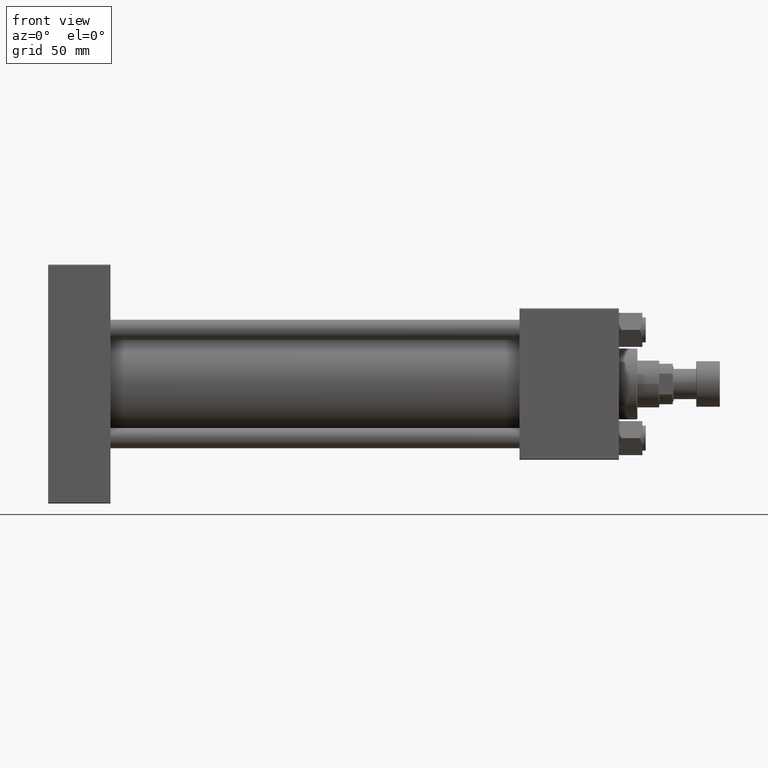
[diagram: clean part render]
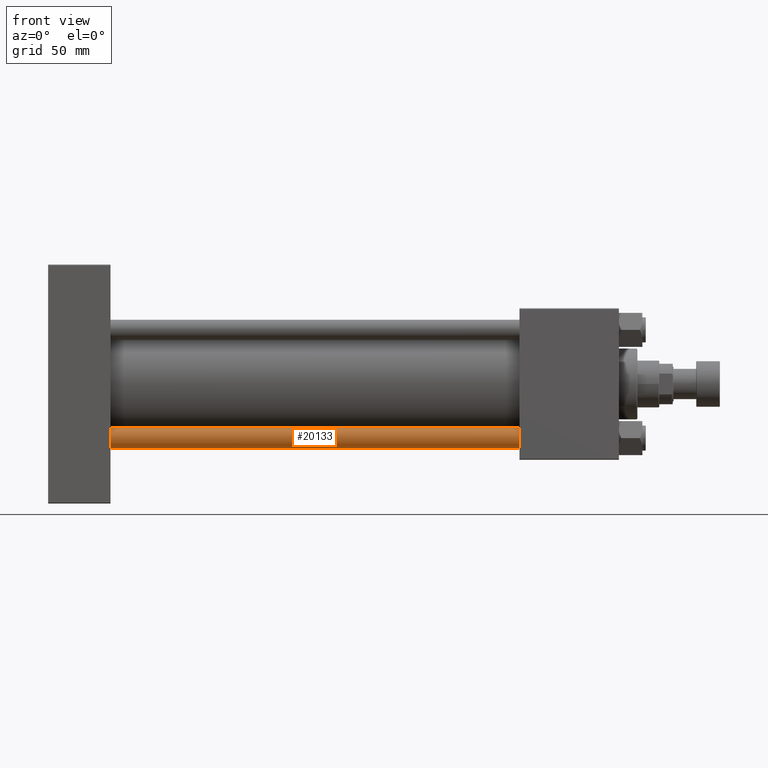
[diagram: same view with one face highlighted and labeled with its STEP entity id]
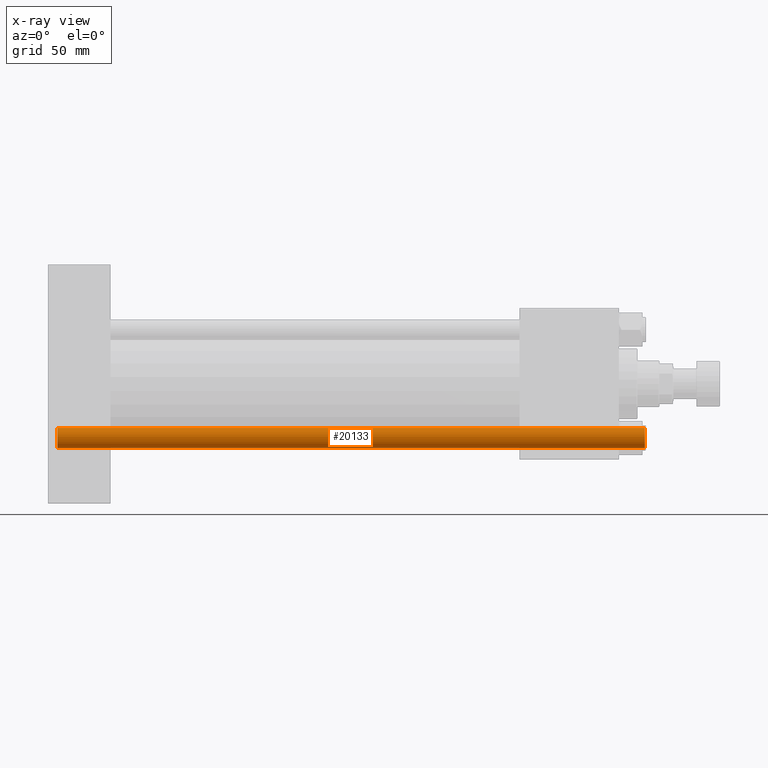
[diagram: x-ray of the same camera — body ghosted, the highlighted face saturated]
A machine part, front view. The second image highlights one B-rep face of the part: STEP entity #20133.
The next image is the same camera in x-ray: the body ghosted, the highlighted face saturated — about 0% of this face is hidden behind the body in this view.
In plain terms, the highlighted cylindrical surface (edge-blend (fillet) strip) has radius 6 mm, axis along (1, -0, -0).
Its self-contained STEP definition (entity closure, byte-faithful):
#735 = LINE ( 'NONE', #40889, #45783 ) ;
#988 = VERTEX_POINT ( 'NONE', #49288 ) ;
#3000 = ORIENTED_EDGE ( 'NONE', *, *, #44713, .T. ) ;
#4490 = VERTEX_POINT ( 'NONE', #44298 ) ;
#5597 = ORIENTED_EDGE ( 'NONE', *, *, #52544, .T. ) ;
#5613 = DIRECTION ( 'NONE',  ( -0.000000000000000000, -0.000000000000000000, -1.000000000000000000 ) ) ;
#6590 = CARTESIAN_POINT ( 'NONE',  ( 6.000000000000000888, 7.347880794884120722E-16, 349.5000000000000568 ) ) ;
#7279 = VECTOR ( 'NONE', #30749, 1000.000000000000000 ) ;
#8762 = ORIENTED_EDGE ( 'NONE', *, *, #23817, .F. ) ;
#11911 = DIRECTION ( 'NONE',  ( -0.000000000000000000, -0.000000000000000000, -1.000000000000000000 ) ) ;
#13798 = DIRECTION ( 'NONE',  ( -0.000000000000000000, -0.000000000000000000, 1.000000000000000000 ) ) ;
#19318 = CARTESIAN_POINT ( 'NONE',  ( 6.000000000000000888, 7.347880794884120722E-16, 350.0000000000000000 ) ) ;
#20133 = ADVANCED_FACE ( 'NONE', ( #38051 ), #21302, .T. ) ;
#20943 = CARTESIAN_POINT ( 'NONE',  ( 0.000000000000000000, 0.000000000000000000, 349.5000000000000568 ) ) ;
#21302 = CYLINDRICAL_SURFACE ( 'NONE', #35192, 6.000000000000000888 ) ;
#21463 = DIRECTION ( 'NONE',  ( 1.000000000000000000, 0.000000000000000000, 0.000000000000000000 ) ) ;
#23330 = CARTESIAN_POINT ( 'NONE',  ( -6.000000000000000888, 0.000000000000000000, 0.4999999999999449329 ) ) ;
#23817 = EDGE_CURVE ( 'NONE', #33579, #988, #43262, .T. ) ;
#25504 = CARTESIAN_POINT ( 'NONE',  ( 0.000000000000000000, 0.000000000000000000, 0.4999999999999449329 ) ) ;
#27031 = AXIS2_PLACEMENT_3D ( 'NONE', #25504, #13798, #41727 ) ;
#29662 = EDGE_CURVE ( 'NONE', #33686, #988, #38057, .T. ) ;
#30156 = EDGE_LOOP ( 'NONE', ( #8762, #3000, #5597, #39017 ) ) ;
#30749 = DIRECTION ( 'NONE',  ( -0.000000000000000000, -0.000000000000000000, -1.000000000000000000 ) ) ;
#33579 = VERTEX_POINT ( 'NONE', #6590 ) ;
#33686 = VERTEX_POINT ( 'NONE', #23330 ) ;
#34320 = DIRECTION ( 'NONE',  ( -1.000000000000000000, 0.000000000000000000, 0.000000000000000000 ) ) ;
#35192 = AXIS2_PLACEMENT_3D ( 'NONE', #37521, #5613, #34320 ) ;
#37521 = CARTESIAN_POINT ( 'NONE',  ( 0.000000000000000000, 0.000000000000000000, 350.0000000000000000 ) ) ;
#38051 = FACE_OUTER_BOUND ( 'NONE', #30156, .T. ) ;
#38057 = CIRCLE ( 'NONE', #27031, 6.000000000000000888 ) ;
#38731 = AXIS2_PLACEMENT_3D ( 'NONE', #20943, #49637, #21463 ) ;
#39017 = ORIENTED_EDGE ( 'NONE', *, *, #29662, .T. ) ;
#40889 = CARTESIAN_POINT ( 'NONE',  ( -6.000000000000000888, 0.000000000000000000, 350.0000000000000000 ) ) ;
#41727 = DIRECTION ( 'NONE',  ( 1.000000000000000000, 0.000000000000000000, 0.000000000000000000 ) ) ;
#43262 = LINE ( 'NONE', #19318, #7279 ) ;
#44298 = CARTESIAN_POINT ( 'NONE',  ( -6.000000000000000888, 0.000000000000000000, 349.5000000000000568 ) ) ;
#44713 = EDGE_CURVE ( 'NONE', #33579, #4490, #52293, .T. ) ;
#45783 = VECTOR ( 'NONE', #11911, 1000.000000000000000 ) ;
#49288 = CARTESIAN_POINT ( 'NONE',  ( 6.000000000000000888, 7.347880794884120722E-16, 0.4999999999999449329 ) ) ;
#49637 = DIRECTION ( 'NONE',  ( 0.000000000000000000, 0.000000000000000000, -1.000000000000000000 ) ) ;
#52293 = CIRCLE ( 'NONE', #38731, 6.000000000000000888 ) ;
#52544 = EDGE_CURVE ( 'NONE', #4490, #33686, #735, .T. ) ;